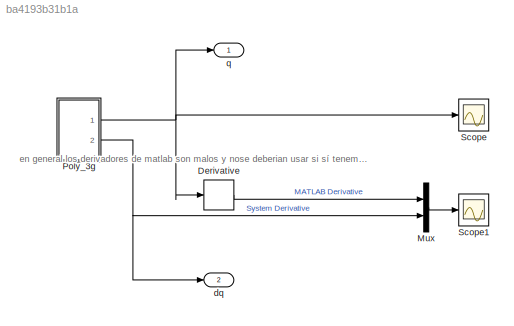
MODEL slx_ba4193b31b1a
KIND model
CONFIG AbsTol = auto
CONFIG EnableMultiTasking = off
CONFIG FixedStep = 1e-3
CONFIG MaxStep = auto
CONFIG MinStep = auto
CONFIG RelTol = 1e-3
CONFIG SampleTimeConstraint = Unconstrained
CONFIG SolverName = ode4
CONFIG StartTime = 0.0
CONFIG StopTime = 6
BLOCK [Derivative] Derivative
BLOCK [Mux] Mux
  DisplayOption = bar
  Inputs = 2
  Ports = [2, 1]
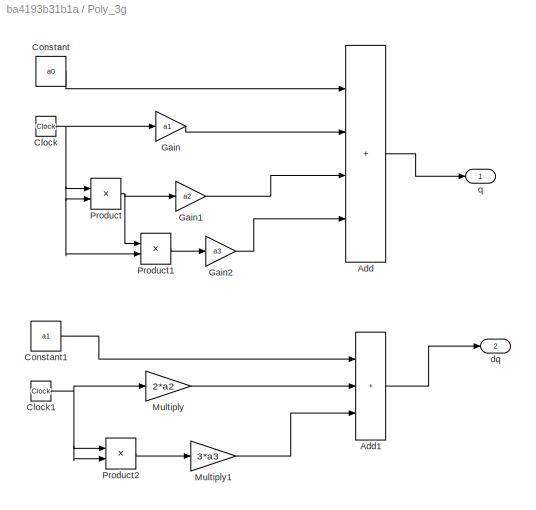
BLOCK [SubSystem] Poly_3g
  Ports = [0, 2]
  RequestExecContextInheritance = off
BLOCK [Sum] Poly_3g/Add
  IconShape = rectangular
  Inputs = ++++
  Ports = [4, 1]
BLOCK [Sum] Poly_3g/Add1
  IconShape = rectangular
  Inputs = +++
  Ports = [3, 1]
BLOCK [Clock] Poly_3g/Clock
BLOCK [Clock] Poly_3g/Clock1
BLOCK [Constant] Poly_3g/Constant
  Value = a0
BLOCK [Constant] Poly_3g/Constant1
  Value = a1
BLOCK [Gain] Poly_3g/Gain
  Gain = a1
BLOCK [Gain] Poly_3g/Gain1
  Gain = a2
BLOCK [Gain] Poly_3g/Gain2
  Gain = a3
BLOCK [Gain] Poly_3g/Multiply
  Gain = 2*a2
BLOCK [Gain] Poly_3g/Multiply1
  Gain = 3*a3
BLOCK [Product] Poly_3g/Product
  Ports = [2, 1]
BLOCK [Product] Poly_3g/Product1
  Ports = [2, 1]
BLOCK [Product] Poly_3g/Product2
  Ports = [2, 1]
BLOCK [Outport] Poly_3g/dq
  Port = 2
BLOCK [Outport] Poly_3g/q
BLOCK [Scope] Scope
  Floating = off
  NumInputPorts = 1
  Ports = [1]
  ScopeSpecificationString = Simulink.scopes.TimeScopeBlockCfg('CurrentConfiguration', extmgr.ConfigurationSet(extmgr.Configuration('Core','General UI',true),extmgr.Configuration('Core','Source UI',true),extmgr.Configuration('Sources','WiredSimulink',true),extmgr.Configuration('Visuals','Time Domain',true,'SerializedDisplays',{struct('MinYLimReal','-2.40032','MaxYLimReal','28.70292','YLabelReal','','MinYLimMag','0.00000','Max...<+1367ch>
BLOCK [Scope] Scope1
  Floating = off
  NumInputPorts = 1
  Ports = [1]
  ScopeSpecificationString = Simulink.scopes.TimeScopeBlockCfg('CurrentConfiguration', extmgr.ConfigurationSet(extmgr.Configuration('Core','General UI',true),extmgr.Configuration('Core','Source UI',true),extmgr.Configuration('Sources','WiredSimulink',true,'DataLoggingVariableName','ScopeData1'),extmgr.Configuration('Visuals','Time Domain',true,'SerializedDisplays',{struct('MinYLimReal','-29.25625','MaxYLimReal','7.75069','YLa...<+1459ch>
BLOCK [Outport] dq
  Port = 2
BLOCK [Outport] q
ANNOTATION (root): en general los derivadores de matlab son malos y nose deberian usar si sí tenemos nuestra ecuacion de la derivada
LINE Derivative:1 -> Mux:1
LINE Mux:1 -> Scope1:1
LINE Poly_3g/Add1:1 -> Poly_3g/dq:1
LINE Poly_3g/Add:1 -> Poly_3g/q:1
NET Poly_3g/Clock1:1 -> Poly_3g/Multiply:1, Poly_3g/Product2:1, Poly_3g/Product2:2
NET Poly_3g/Clock:1 -> Poly_3g/Gain:1, Poly_3g/Product1:2, Poly_3g/Product:1, Poly_3g/Product:2
LINE Poly_3g/Constant1:1 -> Poly_3g/Add1:1
LINE Poly_3g/Constant:1 -> Poly_3g/Add:1
LINE Poly_3g/Gain1:1 -> Poly_3g/Add:3
LINE Poly_3g/Gain2:1 -> Poly_3g/Add:4
LINE Poly_3g/Gain:1 -> Poly_3g/Add:2
LINE Poly_3g/Multiply1:1 -> Poly_3g/Add1:3
LINE Poly_3g/Multiply:1 -> Poly_3g/Add1:2
LINE Poly_3g/Product1:1 -> Poly_3g/Gain2:1
LINE Poly_3g/Product2:1 -> Poly_3g/Multiply1:1
NET Poly_3g/Product:1 -> Poly_3g/Gain1:1, Poly_3g/Product1:1
NET Poly_3g:1 -> Derivative:1, Scope:1, q:1
NET Poly_3g:2 -> Mux:2, dq:1
note: NET lines group one-source signal fan-out (src -> all destinations, sorted); 1:1 wires keep LINE
